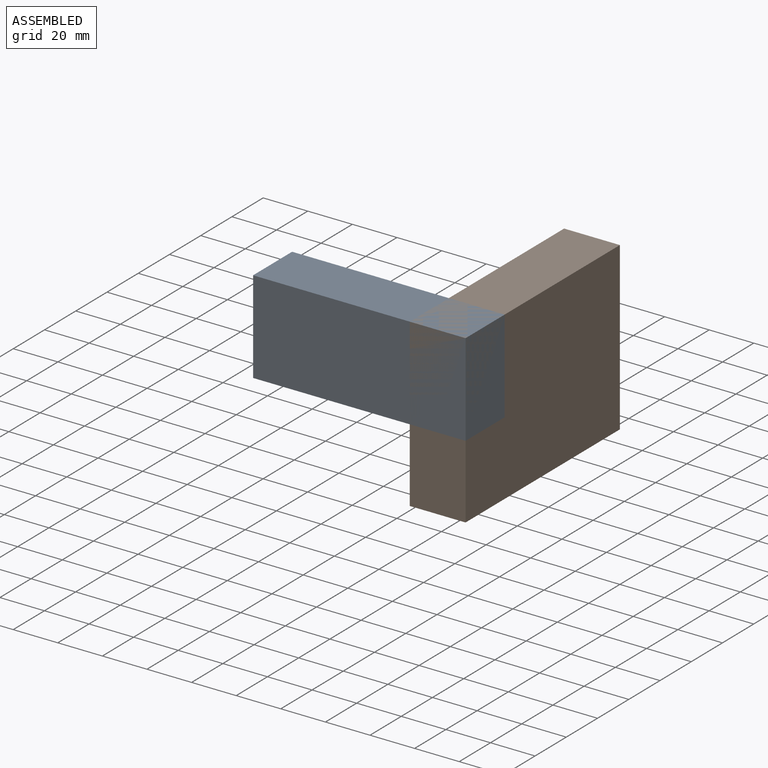
[diagram: assembled view]
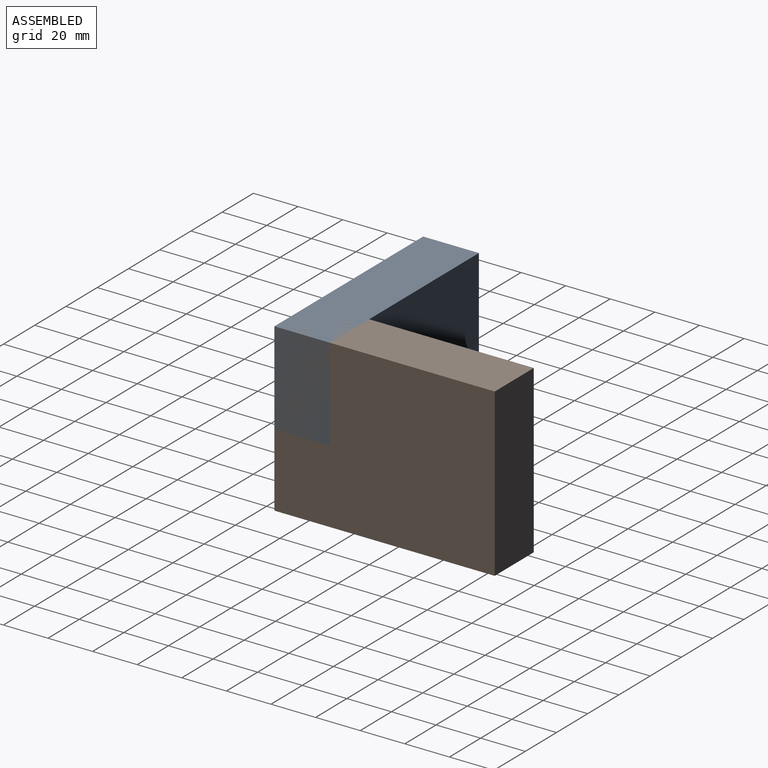
[diagram: assembled view, second angle]
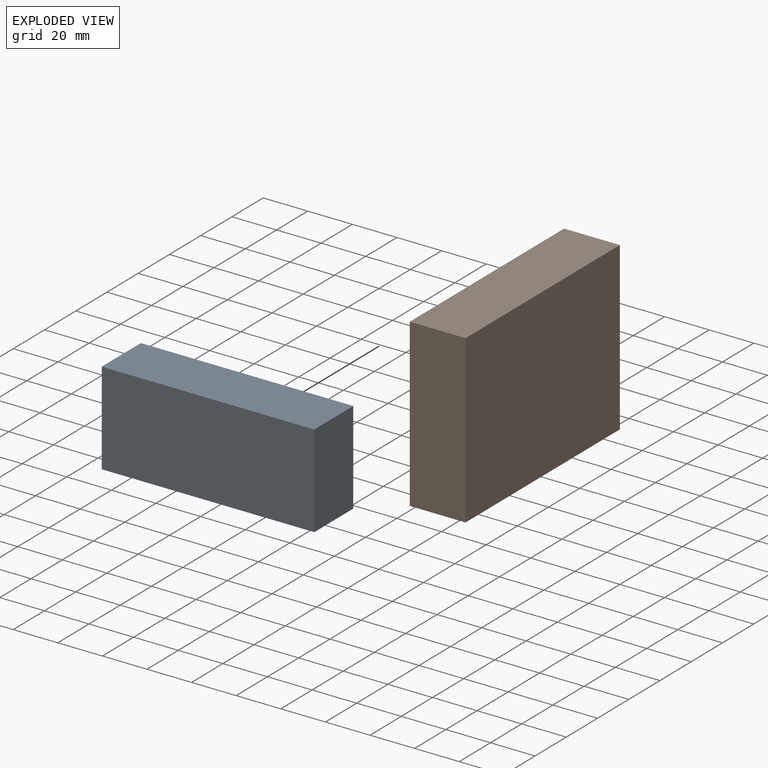
[diagram: exploded view]
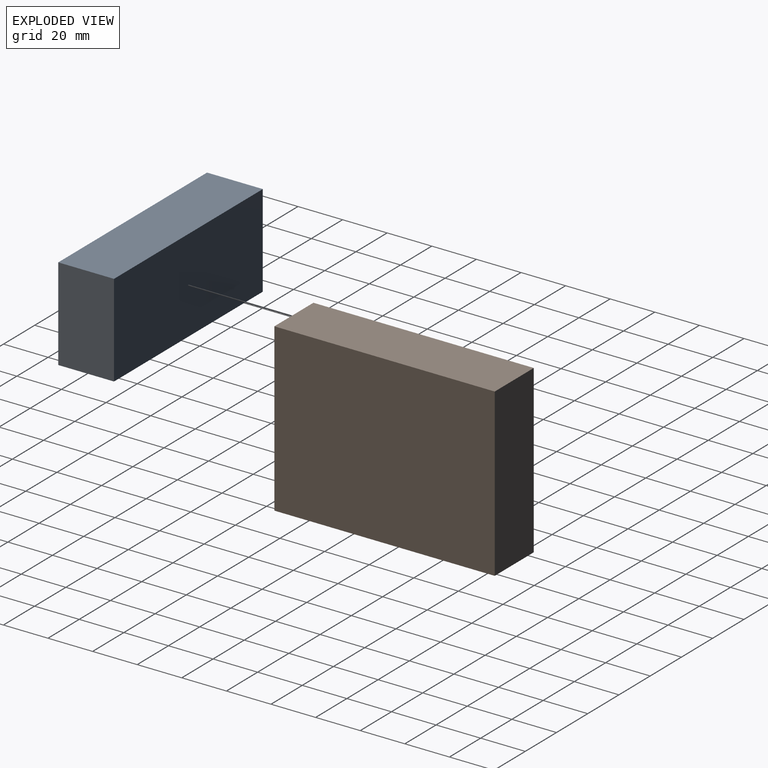
[diagram: exploded view, second angle]
ASSEMBLY  parts=2 mates=2
PART A: 6 faces, bbox 95.3x25x41.6 mm
  f0: plane 95.28x25mm, normal (0,0,1), area 2381.9mm2, adj f1,f3,f4,f5
  f1: plane 41.6x25mm, normal (-1,0,0), area 1040mm2, adj f0,f2,f4,f5
  f2: plane 95.28x25mm, normal (0,0,-1), area 2381.9mm2, adj f1,f3,f4,f5
  f3: plane 41.6x25mm, normal (1,0,0), area 1040mm2, adj f0,f2,f4,f5
  f4: plane 95.28x41.6mm, normal (0,-1,0), area 3963.7mm2, adj f0,f1,f2,f3
  f5: plane 95.28x41.6mm, normal (0,1,0), area 3963.7mm2, adj f0,f1,f2,f3
PART B: 6 faces, bbox 25x98.8x74.7 mm
  f0: plane 98.81x25mm, normal (0,0,1), area 2470.3mm2, adj f1,f3,f4,f5
  f1: plane 74.7x25mm, normal (0,-1,0), area 1867.4mm2, adj f0,f2,f4,f5
  f2: plane 98.81x25mm, normal (0,0,-1), area 2470.3mm2, adj f1,f3,f4,f5
  f3: plane 74.7x25mm, normal (0,1,0), area 1867.4mm2, adj f0,f2,f4,f5
  f4: plane 98.81x74.7mm, normal (1,0,0), area 7380.8mm2, adj f0,f1,f2,f3
  f5: plane 98.81x74.7mm, normal (-1,0,0), area 7380.8mm2, adj f0,f1,f2,f3
PLACE A t=(-13.34,-27.57,10.21)mm
PLACE B t=(0.62,-5.46,-8.73)mm
MATE fastened A.f4 <-> B.f1  axis (0,-1,0) through (25.62,-52.57,42.03)mm
MATE parallel A.f4 <-> B.f1  axis (0,-1,0) through (-22.02,-52.57,21.23)mm
